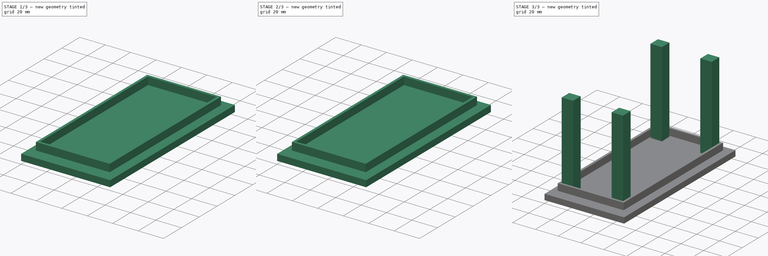
[diagram: build sequence overview — one tinted view per stage of 3, left to right]
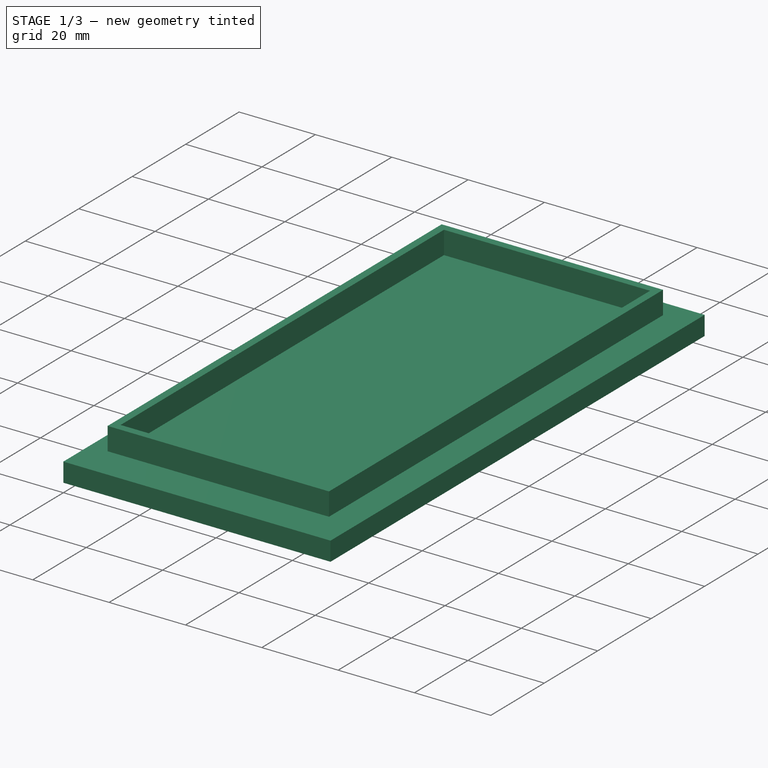
[diagram: stage 1 of 3 — iso view after this stage's code; geometry added in this stage tinted green]
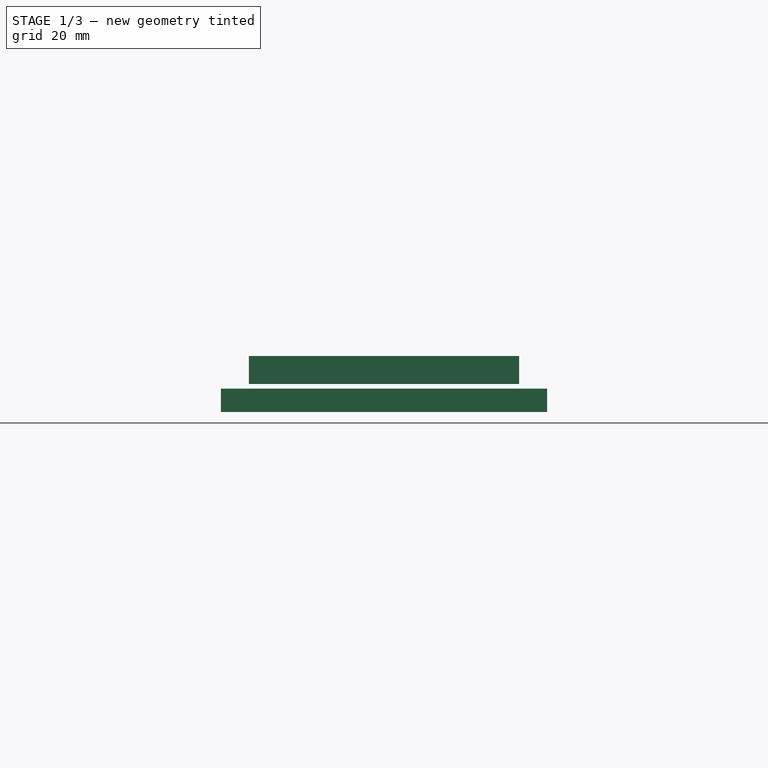
[diagram: stage 1 of 3 — front view after this stage's code; geometry added in this stage tinted green]
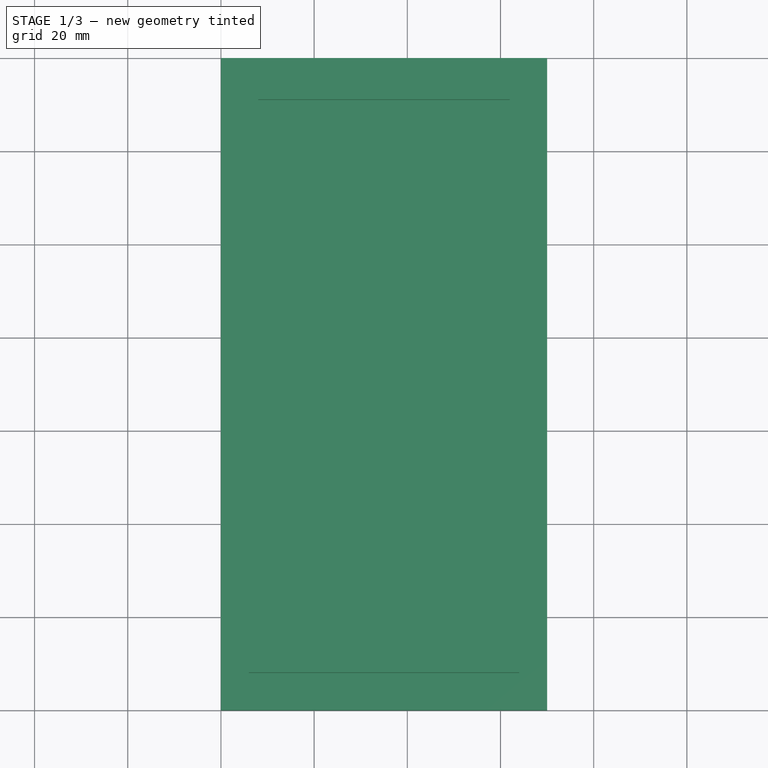
[diagram: stage 1 of 3 — top view after this stage's code; geometry added in this stage tinted green]
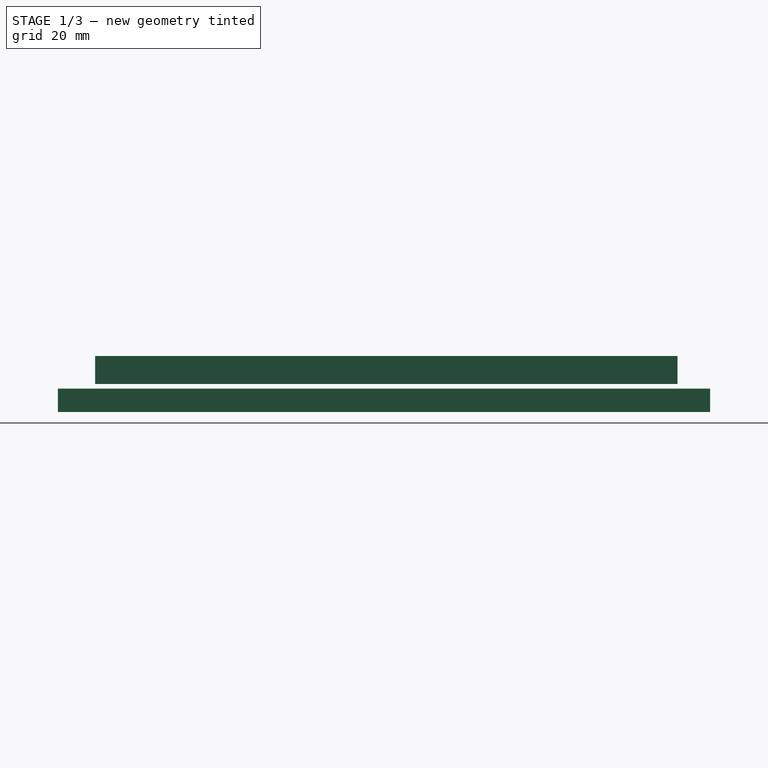
[diagram: stage 1 of 3 — right view after this stage's code; geometry added in this stage tinted green]
FCSTD DOCUMENT  (FreeCAD 0.15R4671 (Git))
Label: table
License: All rights reserved
LicenseURL: http://en.wikipedia.org/wiki/All_rights_reserved
objects: Sketcher::SketchObject×3, Part::Extrusion×3, Part::Fuse×2
note: 8 computed .brp shape members not serialized (recipe doc carries the construction recipe); baked Part::Feature solids carry a one-line shape summary decoded from their .brp

FEATURE [Sketcher::SketchObject] Sketch
  sketch-geometry (4):
    g0: LineSegment StartX=0 StartY=0 StartZ=0 EndX=0 EndY=140 EndZ=0
    g1: LineSegment StartX=0 StartY=140 StartZ=0 EndX=70 EndY=140 EndZ=0
    g2: LineSegment StartX=0 StartY=0 StartZ=0 EndX=70 EndY=0 EndZ=0
    g3: LineSegment StartX=70 StartY=0 StartZ=0 EndX=70 EndY=140 EndZ=0
  constraints (11):
    c: Vertical(g0)
    c: DistanceY(g0,g0) = -140
    c: Coincident(g1,g0)
    c: Horizontal(g1)
    c: DistanceX(g1,g0) = -70
    c: Coincident(g2,g0)
    c: Horizontal(g2)
    c: Coincident(g3,g2)
    c: Coincident(g3,g1)
    c: Vertical(g3)
    c: Coincident(g0,g-1)
FEATURE [Part::Extrusion] Extrude  label="table_top"
  Base = -> Sketch
  Dir = (0,0,5)
  Solid = true
FEATURE [Sketcher::SketchObject] Sketch001
  sketch-geometry (8):
    g0: LineSegment StartX=64 StartY=133 StartZ=0 EndX=6 EndY=133 EndZ=0
    g1: LineSegment StartX=6 StartY=133 StartZ=0 EndX=6 EndY=8 EndZ=0
    g2: LineSegment StartX=6 StartY=8 StartZ=0 EndX=64 EndY=8 EndZ=0
    g3: LineSegment StartX=64 StartY=8 StartZ=0 EndX=64 EndY=133 EndZ=0
    g4: LineSegment StartX=8 StartY=131 StartZ=0 EndX=62 EndY=131 EndZ=0
    g5: LineSegment StartX=62 StartY=131 StartZ=0 EndX=62 EndY=10 EndZ=0
    g6: LineSegment StartX=62 StartY=10 StartZ=0 EndX=8 EndY=10 EndZ=0
    g7: LineSegment StartX=8 StartY=10 StartZ=0 EndX=8 EndY=131 EndZ=0
  constraints (24):
    c: Coincident(g0,g1)
    c: Coincident(g1,g2)
    c: Coincident(g2,g3)
    c: Coincident(g3,g0)
    c: Horizontal(g0)
    c: Horizontal(g2)
    c: Vertical(g1)
    c: Vertical(g3)
    c: Coincident(g4,g5)
    c: Coincident(g5,g6)
    c: Coincident(g6,g7)
    c: Coincident(g7,g4)
    c: Horizontal(g4)
    c: Horizontal(g6)
    c: Vertical(g5)
    c: Vertical(g7)
    c: DistanceY(g1,g6) = 2
    c: DistanceX(g1,g6) = 2
    c: DistanceX(g5,g2) = 2
    c: DistanceY(g0,g4) = -2
    c: DistanceY(g-1,g1) = 8
    c: DistanceY(g-1,g0) = 133
    c: DistanceX(g-1,g1) = 6
    c: DistanceX(g0,g0) = 58
FEATURE [Part::Extrusion] Extrude002  label="table_support"
  Base = -> Sketch001
  Dir = (0,0,6)
  Placement = pos=(0,0,6) rot=(0,0,1;0rad)
  Solid = true
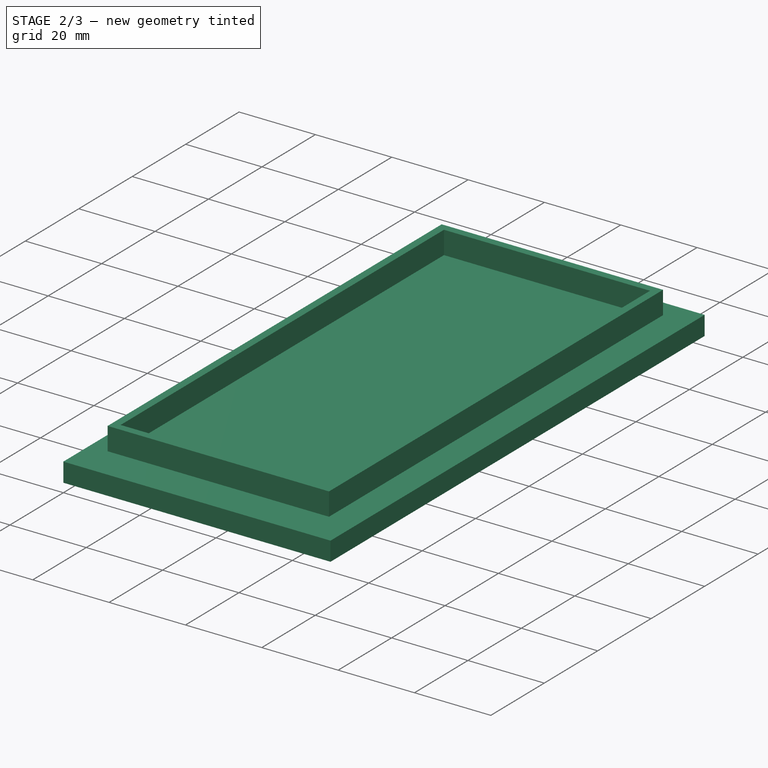
[diagram: stage 2 of 3 — iso view after this stage's code; geometry added in this stage tinted green]
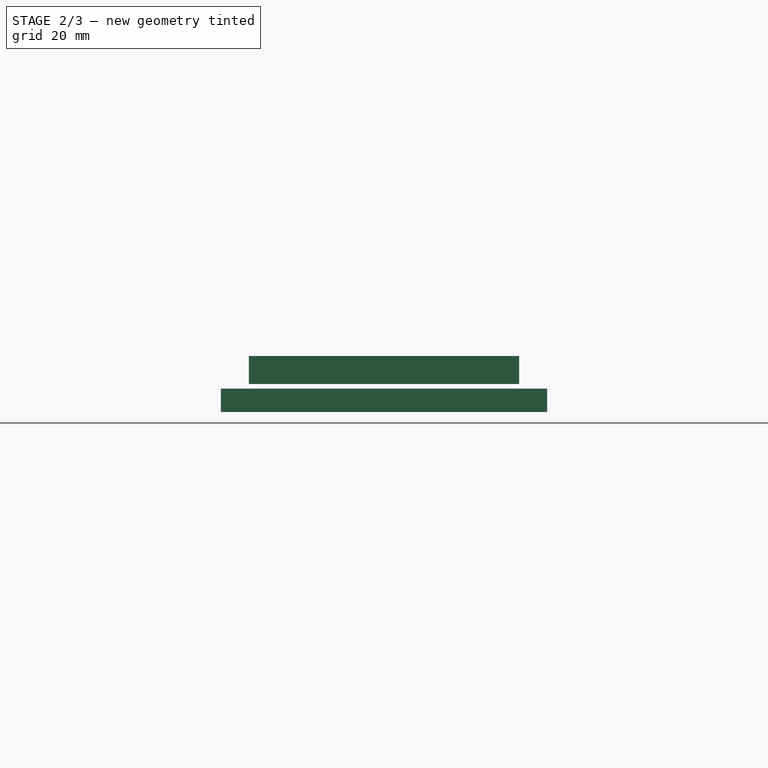
[diagram: stage 2 of 3 — front view after this stage's code; geometry added in this stage tinted green]
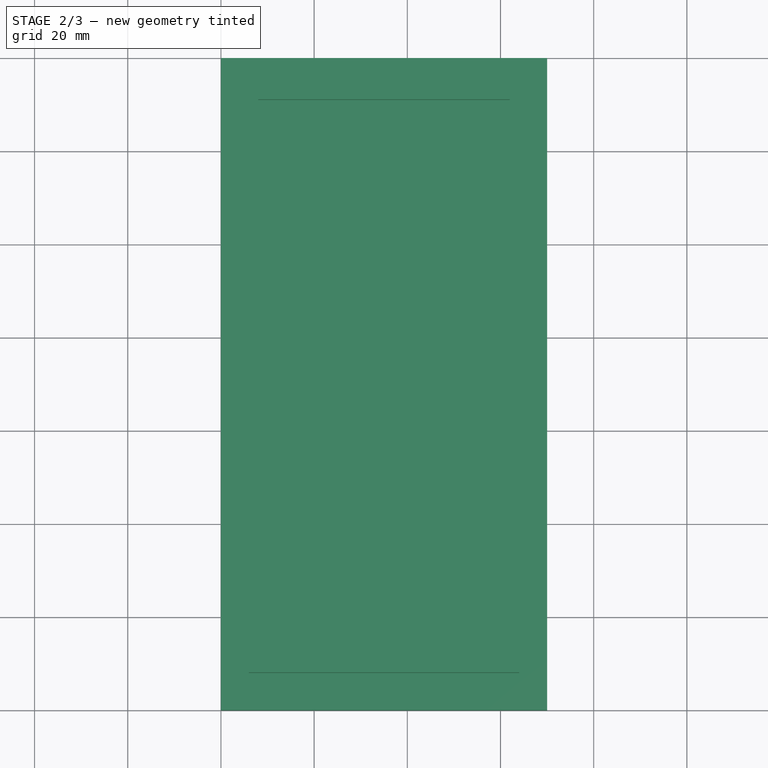
[diagram: stage 2 of 3 — top view after this stage's code; geometry added in this stage tinted green]
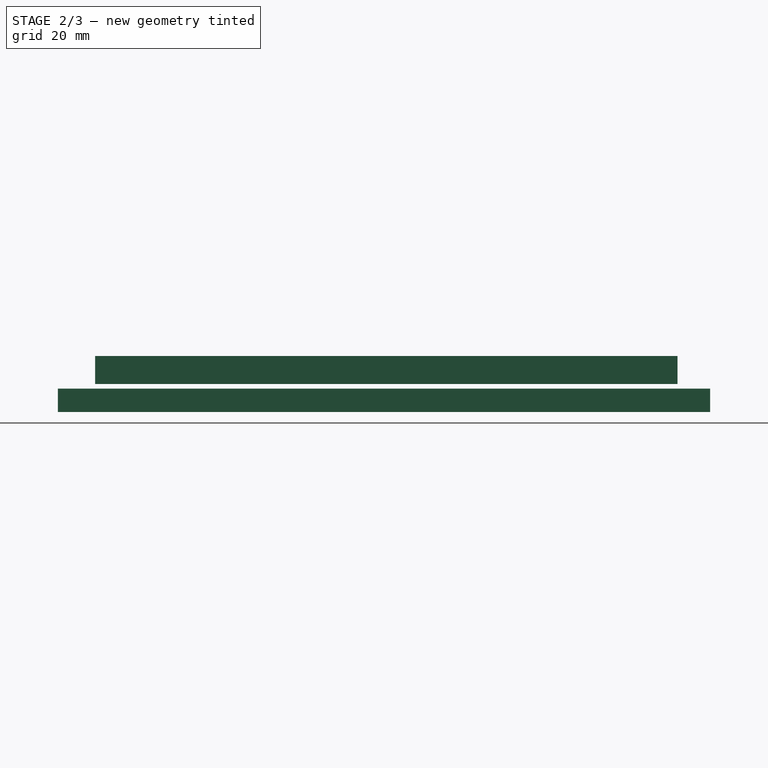
[diagram: stage 2 of 3 — right view after this stage's code; geometry added in this stage tinted green]
FEATURE [Part::Fuse] Fusion
  Base = -> Extrude
  Tool = -> Extrude002
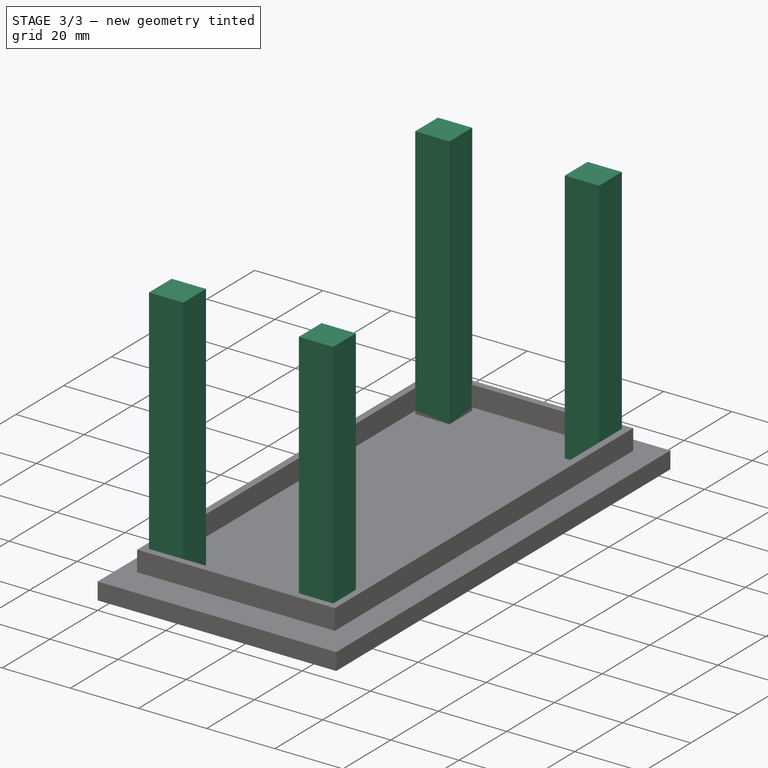
[diagram: stage 3 of 3 — iso view after this stage's code; geometry added in this stage tinted green]
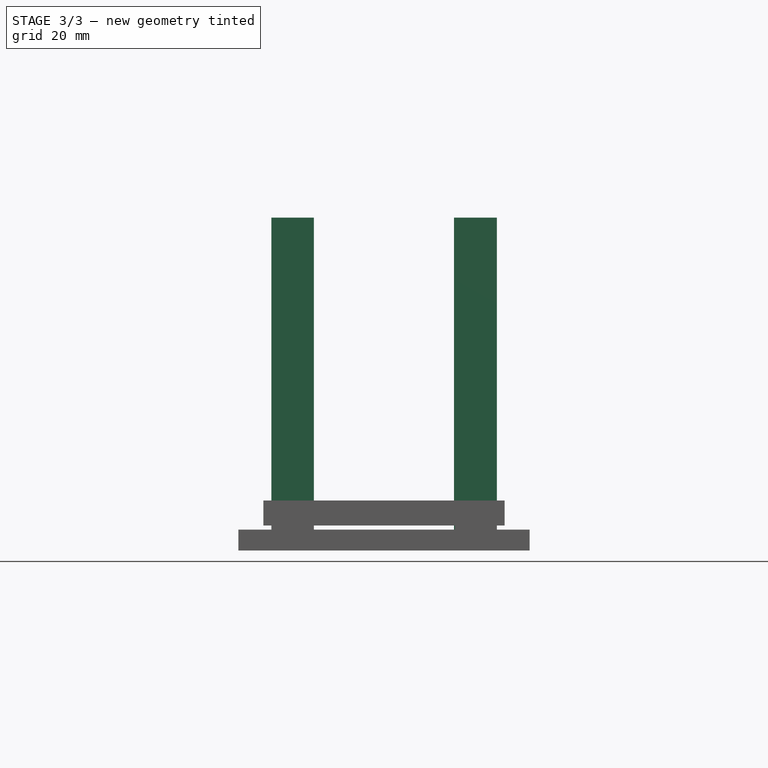
[diagram: stage 3 of 3 — front view after this stage's code; geometry added in this stage tinted green]
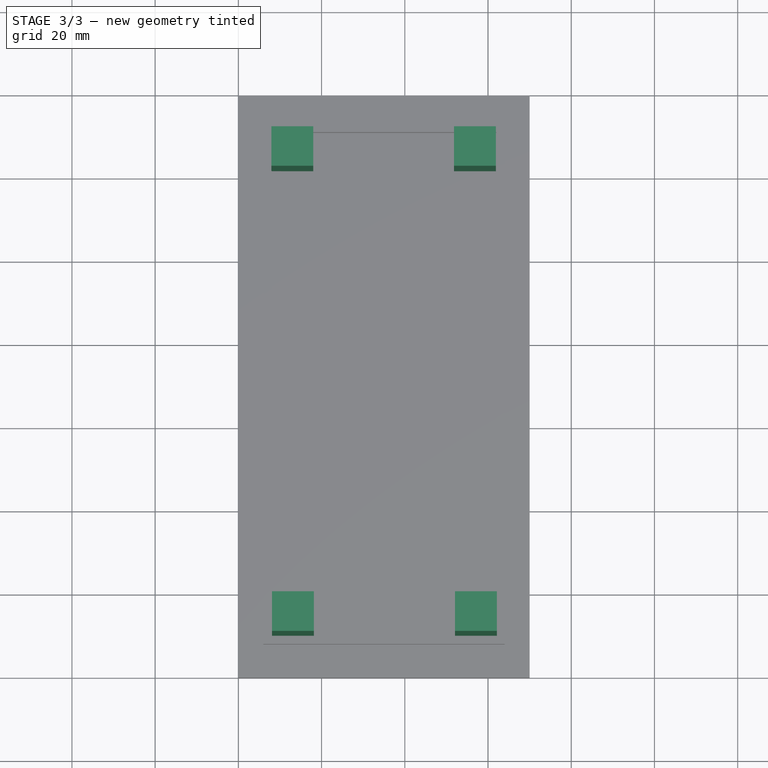
[diagram: stage 3 of 3 — top view after this stage's code; geometry added in this stage tinted green]
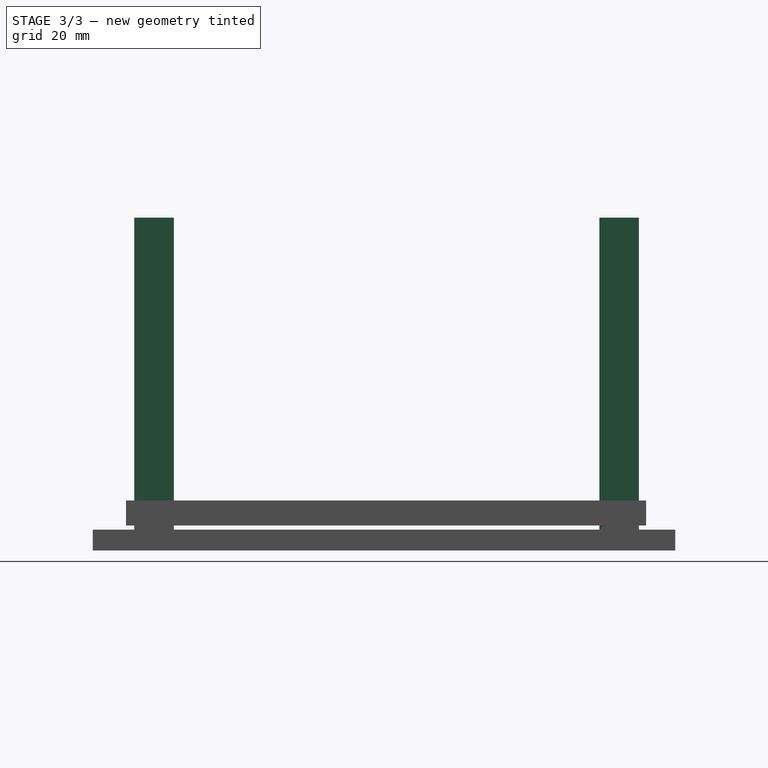
[diagram: stage 3 of 3 — right view after this stage's code; geometry added in this stage tinted green]
FEATURE [Sketcher::SketchObject] Sketch002
  sketch-geometry (16):
    g0: LineSegment StartX=7.92271 StartY=131.269 StartZ=0 EndX=17.9852 EndY=131.269 EndZ=0
    g1: LineSegment StartX=17.9852 StartY=131.269 StartZ=0 EndX=17.9852 EndY=121.75 EndZ=0
    g2: LineSegment StartX=17.9852 StartY=121.75 StartZ=0 EndX=7.92271 EndY=121.75 EndZ=0
    g3: LineSegment StartX=7.92271 StartY=121.75 StartZ=0 EndX=7.92271 EndY=131.269 EndZ=0
    g4: LineSegment StartX=61.8747 StartY=131.269 StartZ=0 EndX=51.8121 EndY=131.269 EndZ=0
    g5: LineSegment StartX=51.8121 StartY=131.269 StartZ=0 EndX=51.8121 EndY=121.75 EndZ=0
    g6: LineSegment StartX=51.8121 StartY=121.75 StartZ=0 EndX=61.8747 EndY=121.75 EndZ=0
    g7: LineSegment StartX=61.8747 StartY=121.75 StartZ=0 EndX=61.8747 EndY=131.269 EndZ=0
    g8: LineSegment StartX=52.053 StartY=19.4933 StartZ=0 EndX=62.1156 EndY=19.4933 EndZ=0
    g9: LineSegment StartX=62.1156 StartY=19.4933 StartZ=0 EndX=62.1156 EndY=9.9745 EndZ=0
    g10: LineSegment StartX=62.1156 StartY=9.9745 StartZ=0 EndX=52.053 EndY=9.9745 EndZ=0
    g11: LineSegment StartX=52.053 StartY=9.9745 StartZ=0 EndX=52.053 EndY=19.4933 EndZ=0
    g12: LineSegment StartX=18.1392 StartY=19.4933 StartZ=0 EndX=8.07666 EndY=19.4933 EndZ=0
    g13: LineSegment StartX=8.07666 StartY=19.4933 StartZ=0 EndX=8.07666 EndY=9.9745 EndZ=0
    g14: LineSegment StartX=8.07666 StartY=9.9745 StartZ=0 EndX=18.1392 EndY=9.9745 EndZ=0
    g15: LineSegment StartX=18.1392 StartY=9.9745 StartZ=0 EndX=18.1392 EndY=19.4933 EndZ=0
  constraints (40):
    c: Coincident(g0,g1)
    c: Coincident(g1,g2)
    c: Coincident(g2,g3)
    c: Coincident(g3,g0)
    c: Horizontal(g0)
    c: Horizontal(g2)
    c: Vertical(g1)
    c: Vertical(g3)
    c: Coincident(g4,g5)
    c: Coincident(g5,g6)
    c: Coincident(g6,g7)
    c: Coincident(g7,g4)
    c: Horizontal(g4)
    c: Horizontal(g6)
    c: Vertical(g5)
    c: Vertical(g7)
    c: Coincident(g8,g9)
    c: Coincident(g9,g10)
    c: Coincident(g10,g11)
    c: Coincident(g11,g8)
    c: Horizontal(g8)
    c: Horizontal(g10)
    c: Vertical(g9)
    c: Vertical(g11)
    c: Coincident(g12,g13)
    c: Coincident(g13,g14)
    c: Coincident(g14,g15)
    c: Coincident(g15,g12)
    c: Horizontal(g12)
    c: Horizontal(g14)
    c: Vertical(g13)
    c: Vertical(g15)
    c: Equal(g1,g15)
    c: Equal(g15,g9)
    c: Equal(g9,g7)
    c: Equal(g2,g6)
    c: Equal(g6,g12)
    c: Equal(g12,g8)
    c: DistanceY(g5,g1) = 0
    c: DistanceY(g12,g8) = 0
FEATURE [Part::Extrusion] Extrude003  label="legs"
  Base = -> Sketch002
  Dir = (0,0,80)
  Solid = true
FEATURE [Part::Fuse] Fusion002
  Base = -> Fusion
  Tool = -> Extrude003
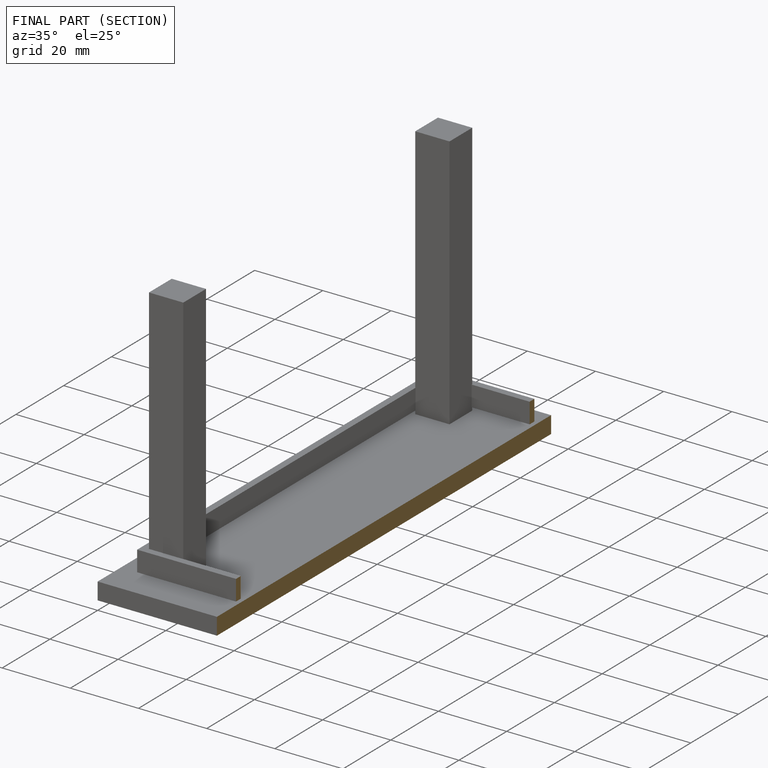
[diagram: finished part — half-section view (interior)]
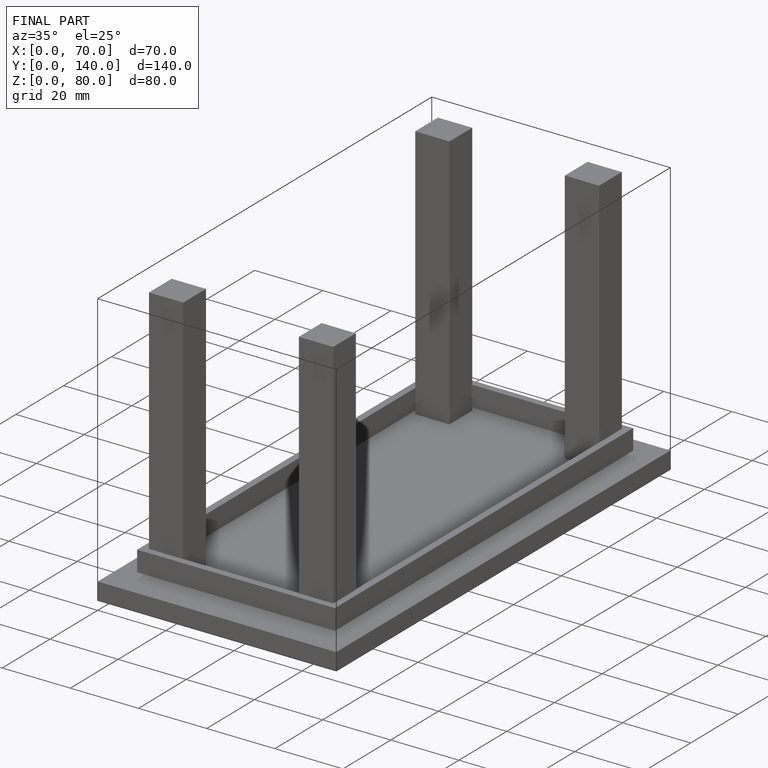
[diagram: finished part — iso view with bounding-box wireframe]
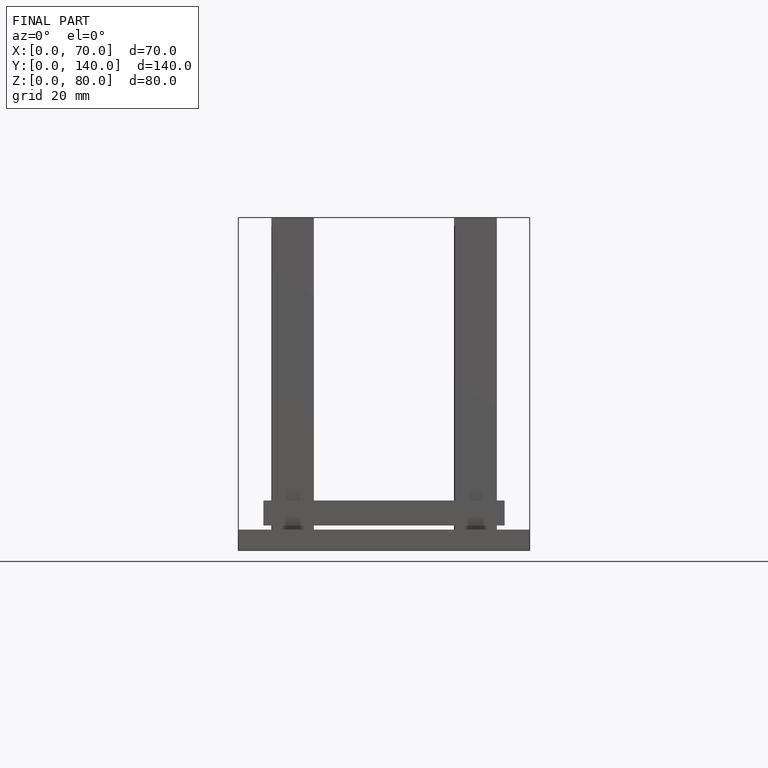
[diagram: finished part — front view with bounding-box wireframe]
